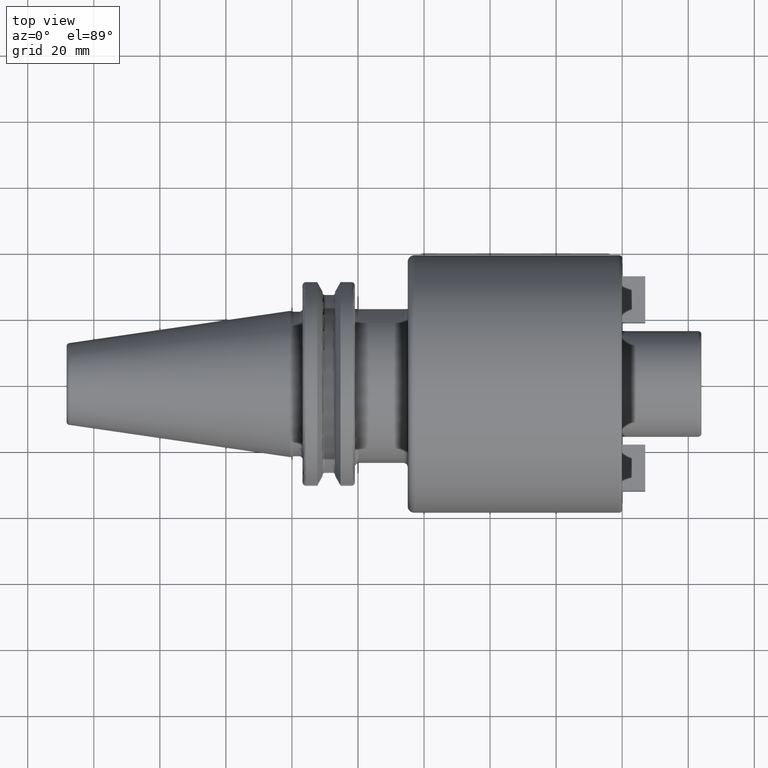
[diagram: clean part render]
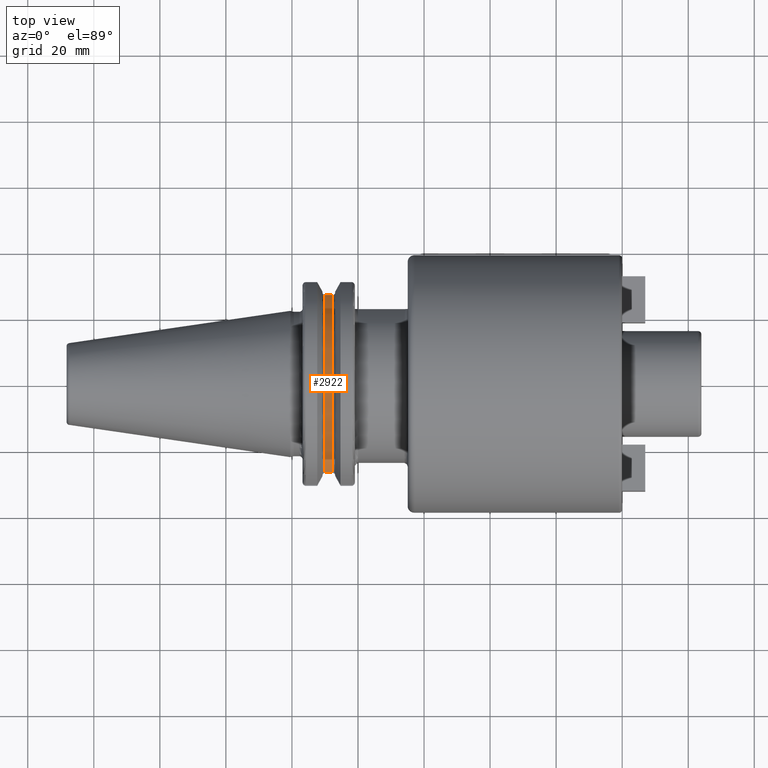
[diagram: same view with one face highlighted and labeled with its STEP entity id]
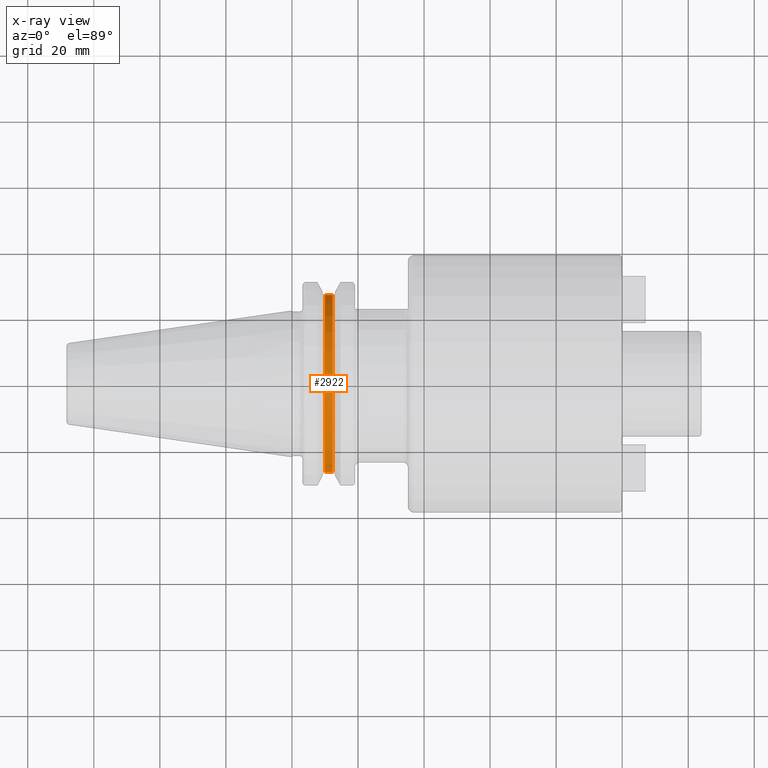
[diagram: x-ray of the same camera — body ghosted, the highlighted face saturated]
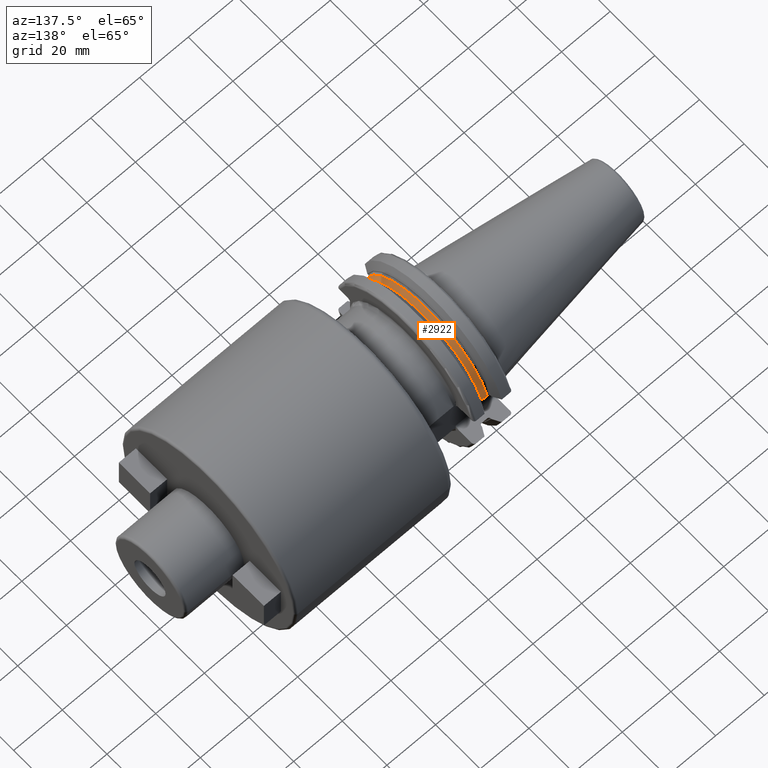
[diagram: same view with one face highlighted and labeled with its STEP entity id]
A machine part, top view. The second image highlights one B-rep face of the part: STEP entity #2922.
The next image is the same camera in x-ray: the body ghosted, the highlighted face saturated — about 0% of this face is hidden behind the body in this view.
A second angle (auxiliary view) of the same face is appended — the face is thin or edge-on in the first view.
In plain terms, the highlighted cylindrical surface (partial cylindrical patch) has radius 28 mm, axis along (1, 0, 0).
Its self-contained STEP definition (entity closure, byte-faithful):
#839=CARTESIAN_POINT('',(1.00125E1,2.680279836137E1,8.1E0));
#859=CARTESIAN_POINT('',(1.00125E1,-2.680279836137E1,8.1E0));
#866=DIRECTION('',(1.E0,0.E0,0.E0));
#867=VECTOR('',#866,2.325E0);
#868=CARTESIAN_POINT('',(1.00125E1,2.680279836137E1,8.1E0));
#869=LINE('',#868,#867);
#870=DIRECTION('',(1.E0,0.E0,0.E0));
#871=VECTOR('',#870,2.325E0);
#872=CARTESIAN_POINT('',(1.00125E1,-2.680279836137E1,8.1E0));
#873=LINE('',#872,#871);
#874=CARTESIAN_POINT('',(1.00125E1,0.E0,0.E0));
#875=DIRECTION('',(1.E0,0.E0,0.E0));
#876=DIRECTION('',(0.E0,9.572427986202E-1,2.892857142857E-1));
#877=AXIS2_PLACEMENT_3D('',#874,#875,#876);
#901=CARTESIAN_POINT('',(1.23375E1,0.E0,0.E0));
#902=DIRECTION('',(1.E0,0.E0,0.E0));
#903=DIRECTION('',(0.E0,9.572427986202E-1,2.892857142857E-1));
#904=AXIS2_PLACEMENT_3D('',#901,#902,#903);
#1616=VERTEX_POINT('',#839);
#1617=VERTEX_POINT('',#859);
#1618=CARTESIAN_POINT('',(1.23375E1,2.680279836137E1,8.1E0));
#1619=VERTEX_POINT('',#1618);
#1620=CARTESIAN_POINT('',(1.23375E1,-2.680279836137E1,8.1E0));
#1621=VERTEX_POINT('',#1620);
#2910=CARTESIAN_POINT('',(7.293041127536E0,0.E0,0.E0));
#2911=DIRECTION('',(1.E0,0.E0,0.E0));
#2912=DIRECTION('',(0.E0,-1.E0,0.E0));
#2913=AXIS2_PLACEMENT_3D('',#2910,#2911,#2912);
#2914=CYLINDRICAL_SURFACE('',#2913,2.8E1);
#2915=ORIENTED_EDGE('',*,*,#2125,.T.);
#2917=ORIENTED_EDGE('',*,*,#2916,.T.);
#2918=ORIENTED_EDGE('',*,*,#2175,.F.);
#2919=ORIENTED_EDGE('',*,*,#2903,.F.);
#2920=EDGE_LOOP('',(#2915,#2917,#2918,#2919));
#2921=FACE_OUTER_BOUND('',#2920,.F.);
#2922=ADVANCED_FACE('',(#2921),#2914,.T.);
#878=CIRCLE('',#877,2.8E1);
#905=CIRCLE('',#904,2.8E1);
#2125=EDGE_CURVE('',#1616,#1619,#869,.T.);
#2175=EDGE_CURVE('',#1617,#1621,#873,.T.);
#2903=EDGE_CURVE('',#1616,#1617,#878,.T.);
#2916=EDGE_CURVE('',#1619,#1621,#905,.T.);